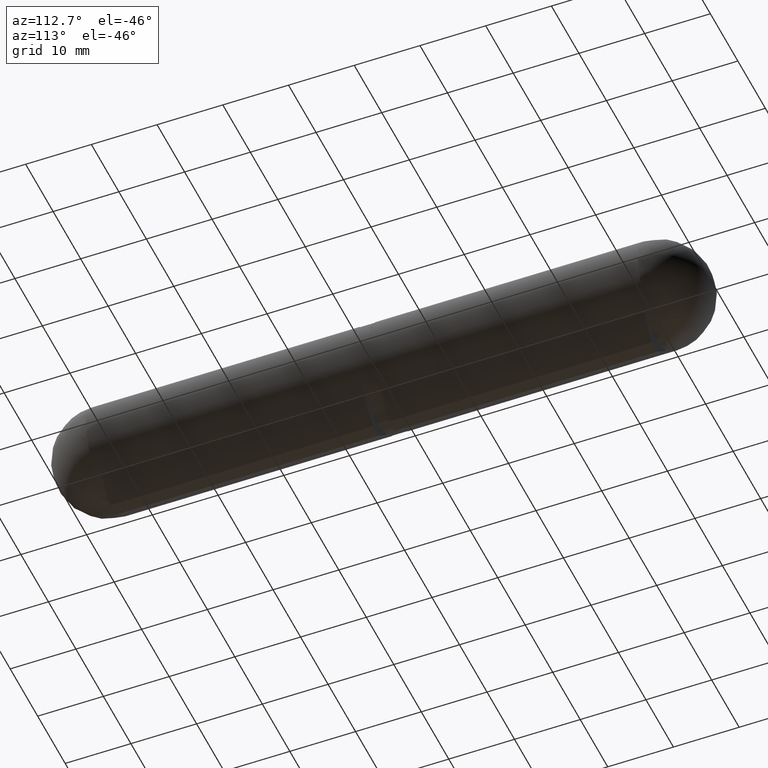
[diagram: clean part render]
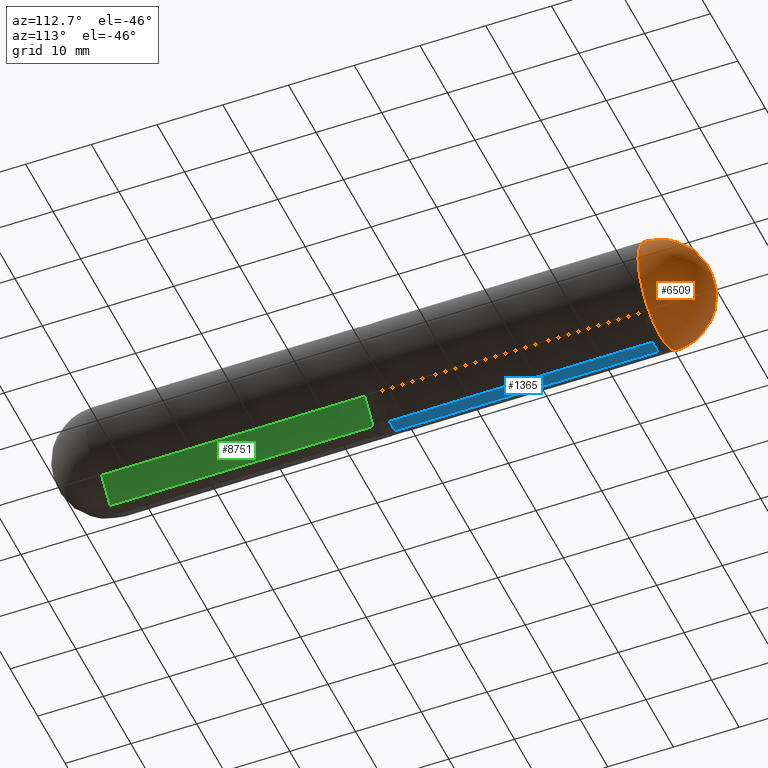
[diagram: same view with three faces highlighted in distinct colors, each labeled with its STEP entity id]
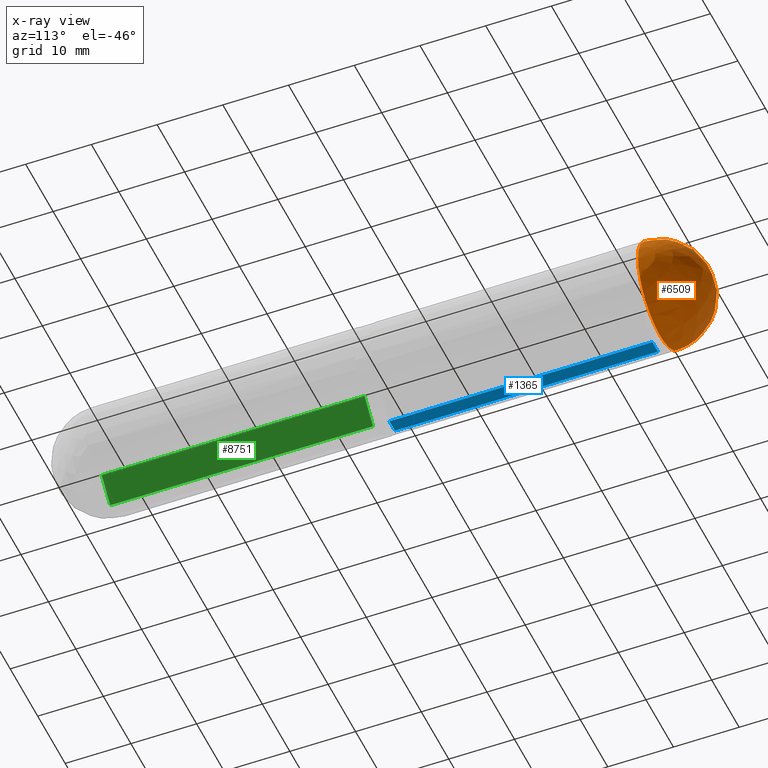
[diagram: x-ray of the same camera — body ghosted, the three highlighted faces saturated]
A machine part, auxiliary view with three faces highlighted in distinct colors.
The next image is the same camera in x-ray (body ghosted, the three faces saturated) — at least one of them is partly hidden behind the body in this view.
Their STEP definitions:

[orange] entity #6509 — the highlighted spherical surface has radius 8 mm.
#441 = DIRECTION ( 'NONE',  ( 0.000000000000000000, 0.000000000000000000, -1.000000000000000000 ) ) ;
#1214 = EDGE_CURVE ( 'NONE', #7772, #7772, #4209, .T. ) ;
#3477 = CARTESIAN_POINT ( 'NONE',  ( 0.000000000000000000, 8.000000000000000000, -8.000000000000000000 ) ) ;
#4209 = CIRCLE ( 'NONE', #8937, 8.000000000000000000 ) ;
#4546 = AXIS2_PLACEMENT_3D ( 'NONE', #5505, #9421, #10359 ) ;
#5505 = CARTESIAN_POINT ( 'NONE',  ( 0.000000000000000000, 8.000000000000000000, 0.000000000000000000 ) ) ;
#5693 = FACE_OUTER_BOUND ( 'NONE', #7245, .T. ) ;
#6116 = SPHERICAL_SURFACE ( 'NONE', #4546, 8.000000000000000000 ) ;
#6365 = CARTESIAN_POINT ( 'NONE',  ( 0.000000000000000000, 8.000000000000000000, 0.000000000000000000 ) ) ;
#6509 = ADVANCED_FACE ( 'NONE', ( #5693 ), #6116, .T. ) ;
#7245 = EDGE_LOOP ( 'NONE', ( #11552 ) ) ;
#7772 = VERTEX_POINT ( 'NONE', #3477 ) ;
#8937 = AXIS2_PLACEMENT_3D ( 'NONE', #6365, #11263, #441 ) ;
#9421 = DIRECTION ( 'NONE',  ( 1.000000000000000000, 0.000000000000000000, 0.000000000000000000 ) ) ;
#10359 = DIRECTION ( 'NONE',  ( 0.000000000000000000, 0.000000000000000000, 1.000000000000000000 ) ) ;
#11263 = DIRECTION ( 'NONE',  ( 0.000000000000000000, 1.000000000000000000, 0.000000000000000000 ) ) ;
#11552 = ORIENTED_EDGE ( 'NONE', *, *, #1214, .F. ) ;

[blue] entity #1365 — the highlighted planar face has unit normal (0, 0, -1).
#33 = VERTEX_POINT ( 'NONE', #10294 ) ;
#1139 = VECTOR ( 'NONE', #12605, 1000.000000000000000 ) ;
#1365 = ADVANCED_FACE ( 'NONE', ( #8818 ), #4736, .T. ) ;
#1554 = ORIENTED_EDGE ( 'NONE', *, *, #12167, .F. ) ;
#1659 = CARTESIAN_POINT ( 'NONE',  ( -1.000000000000000000, 8.750000000000000000, -10.00000000000000000 ) ) ;
#2034 = CARTESIAN_POINT ( 'NONE',  ( 1.000000000000000000, 48.75000000000000000, -10.00000000000000000 ) ) ;
#2525 = LINE ( 'NONE', #5684, #1139 ) ;
#2721 = VERTEX_POINT ( 'NONE', #1659 ) ;
#3429 = LINE ( 'NONE', #8864, #10996 ) ;
#3724 = ORIENTED_EDGE ( 'NONE', *, *, #5809, .T. ) ;
#3819 = DIRECTION ( 'NONE',  ( 0.000000000000000000, 1.000000000000000000, 0.000000000000000000 ) ) ;
#3996 = DIRECTION ( 'NONE',  ( -1.000000000000000000, -0.000000000000000000, -0.000000000000000000 ) ) ;
#4736 = PLANE ( 'NONE',  #8867 ) ;
#5012 = VERTEX_POINT ( 'NONE', #7291 ) ;
#5216 = EDGE_LOOP ( 'NONE', ( #1554, #6267, #11756, #3724 ) ) ;
#5422 = CARTESIAN_POINT ( 'NONE',  ( -1.000000000000000000, 48.75000000000000000, -10.00000000000000000 ) ) ;
#5604 = DIRECTION ( 'NONE',  ( 0.000000000000000000, 0.000000000000000000, -1.000000000000000000 ) ) ;
#5684 = CARTESIAN_POINT ( 'NONE',  ( 1.000000000000000000, 8.750000000000000000, -10.00000000000000000 ) ) ;
#5809 = EDGE_CURVE ( 'NONE', #2721, #33, #6549, .T. ) ;
#6267 = ORIENTED_EDGE ( 'NONE', *, *, #10259, .F. ) ;
#6549 = LINE ( 'NONE', #9715, #8235 ) ;
#7291 = CARTESIAN_POINT ( 'NONE',  ( 1.000000000000000000, 8.750000000000000000, -10.00000000000000000 ) ) ;
#7542 = DIRECTION ( 'NONE',  ( -1.000000000000000000, 0.000000000000000000, -0.000000000000000000 ) ) ;
#7760 = VERTEX_POINT ( 'NONE', #2034 ) ;
#8235 = VECTOR ( 'NONE', #3819, 1000.000000000000000 ) ;
#8818 = FACE_OUTER_BOUND ( 'NONE', #5216, .T. ) ;
#8864 = CARTESIAN_POINT ( 'NONE',  ( -1.000000000000000000, 8.750000000000000000, -10.00000000000000000 ) ) ;
#8867 = AXIS2_PLACEMENT_3D ( 'NONE', #12570, #5604, #7542 ) ;
#9715 = CARTESIAN_POINT ( 'NONE',  ( -1.000000000000000000, 8.750000000000000000, -10.00000000000000000 ) ) ;
#10259 = EDGE_CURVE ( 'NONE', #5012, #7760, #2525, .T. ) ;
#10294 = CARTESIAN_POINT ( 'NONE',  ( -1.000000000000000000, 48.75000000000000000, -10.00000000000000000 ) ) ;
#10536 = EDGE_CURVE ( 'NONE', #5012, #2721, #3429, .T. ) ;
#10996 = VECTOR ( 'NONE', #3996, 1000.000000000000000 ) ;
#11756 = ORIENTED_EDGE ( 'NONE', *, *, #10536, .T. ) ;
#11908 = LINE ( 'NONE', #5422, #12392 ) ;
#12167 = EDGE_CURVE ( 'NONE', #7760, #33, #11908, .T. ) ;
#12347 = DIRECTION ( 'NONE',  ( -1.000000000000000000, -0.000000000000000000, -0.000000000000000000 ) ) ;
#12392 = VECTOR ( 'NONE', #12347, 1000.000000000000000 ) ;
#12570 = CARTESIAN_POINT ( 'NONE',  ( -1.000000000000000000, 8.750000000000000000, -10.00000000000000000 ) ) ;
#12605 = DIRECTION ( 'NONE',  ( 0.000000000000000000, 1.000000000000000000, 0.000000000000000000 ) ) ;

[green] entity #8751 — the highlighted planar face has unit normal (0.7109, 0, -0.7033).
#96 = CARTESIAN_POINT ( 'NONE',  ( 1.000000000000000000, 8.750000000000000000, -10.00000000000000000 ) ) ;
#578 = DIRECTION ( 'NONE',  ( -0.7033178510102879866, 0.000000000000000000, -0.7108755168454391482 ) ) ;
#680 = LINE ( 'NONE', #1685, #8196 ) ;
#743 = CARTESIAN_POINT ( 'NONE',  ( 4.093222977918994587, 48.75000000000000000, -6.873538073876943599 ) ) ;
#1015 = EDGE_LOOP ( 'NONE', ( #2798, #8909, #2342, #4733 ) ) ;
#1396 = EDGE_CURVE ( 'NONE', #1900, #6684, #680, .T. ) ;
#1685 = CARTESIAN_POINT ( 'NONE',  ( 4.093222977918994587, 8.750000000000000000, -6.873538073876943599 ) ) ;
#1739 = LINE ( 'NONE', #3412, #3250 ) ;
#1900 = VERTEX_POINT ( 'NONE', #6075 ) ;
#2023 = VECTOR ( 'NONE', #11292, 1000.000000000000000 ) ;
#2032 = PLANE ( 'NONE',  #6328 ) ;
#2342 = ORIENTED_EDGE ( 'NONE', *, *, #1396, .T. ) ;
#2628 = DIRECTION ( 'NONE',  ( -0.7033178510102879866, 0.000000000000000000, -0.7108755168454391482 ) ) ;
#2798 = ORIENTED_EDGE ( 'NONE', *, *, #4583, .F. ) ;
#3231 = CARTESIAN_POINT ( 'NONE',  ( 4.093222977918994587, 48.75000000000000000, -6.873538073876943599 ) ) ;
#3250 = VECTOR ( 'NONE', #10268, 1000.000000000000000 ) ;
#3352 = DIRECTION ( 'NONE',  ( -0.7033178510102879866, 0.000000000000000000, -0.7108755168454391482 ) ) ;
#3412 = CARTESIAN_POINT ( 'NONE',  ( 1.000000000000000000, 8.750000000000000000, -10.00000000000000000 ) ) ;
#4307 = CARTESIAN_POINT ( 'NONE',  ( 4.093222977918994587, 8.750000000000000000, -6.873538073876943599 ) ) ;
#4583 = EDGE_CURVE ( 'NONE', #6728, #7282, #5811, .T. ) ;
#4733 = ORIENTED_EDGE ( 'NONE', *, *, #11579, .T. ) ;
#5811 = LINE ( 'NONE', #743, #9809 ) ;
#5982 = EDGE_CURVE ( 'NONE', #1900, #6728, #12692, .T. ) ;
#6075 = CARTESIAN_POINT ( 'NONE',  ( 4.093222977918994587, 8.750000000000000000, -6.873538073876943599 ) ) ;
#6328 = AXIS2_PLACEMENT_3D ( 'NONE', #4307, #6411, #3352 ) ;
#6411 = DIRECTION ( 'NONE',  ( 0.7108755168454391482, 0.000000000000000000, -0.7033178510102879866 ) ) ;
#6684 = VERTEX_POINT ( 'NONE', #96 ) ;
#6728 = VERTEX_POINT ( 'NONE', #3231 ) ;
#7113 = CARTESIAN_POINT ( 'NONE',  ( 1.000000000000000000, 48.75000000000000000, -10.00000000000000000 ) ) ;
#7282 = VERTEX_POINT ( 'NONE', #7113 ) ;
#8196 = VECTOR ( 'NONE', #2628, 1000.000000000000114 ) ;
#8751 = ADVANCED_FACE ( 'NONE', ( #11200 ), #2032, .T. ) ;
#8909 = ORIENTED_EDGE ( 'NONE', *, *, #5982, .F. ) ;
#9809 = VECTOR ( 'NONE', #578, 1000.000000000000114 ) ;
#10268 = DIRECTION ( 'NONE',  ( 0.000000000000000000, 1.000000000000000000, 0.000000000000000000 ) ) ;
#11200 = FACE_OUTER_BOUND ( 'NONE', #1015, .T. ) ;
#11250 = CARTESIAN_POINT ( 'NONE',  ( 4.093222977918994587, 8.750000000000000000, -6.873538073876943599 ) ) ;
#11292 = DIRECTION ( 'NONE',  ( 0.000000000000000000, 1.000000000000000000, 0.000000000000000000 ) ) ;
#11579 = EDGE_CURVE ( 'NONE', #6684, #7282, #1739, .T. ) ;
#12692 = LINE ( 'NONE', #11250, #2023 ) ;